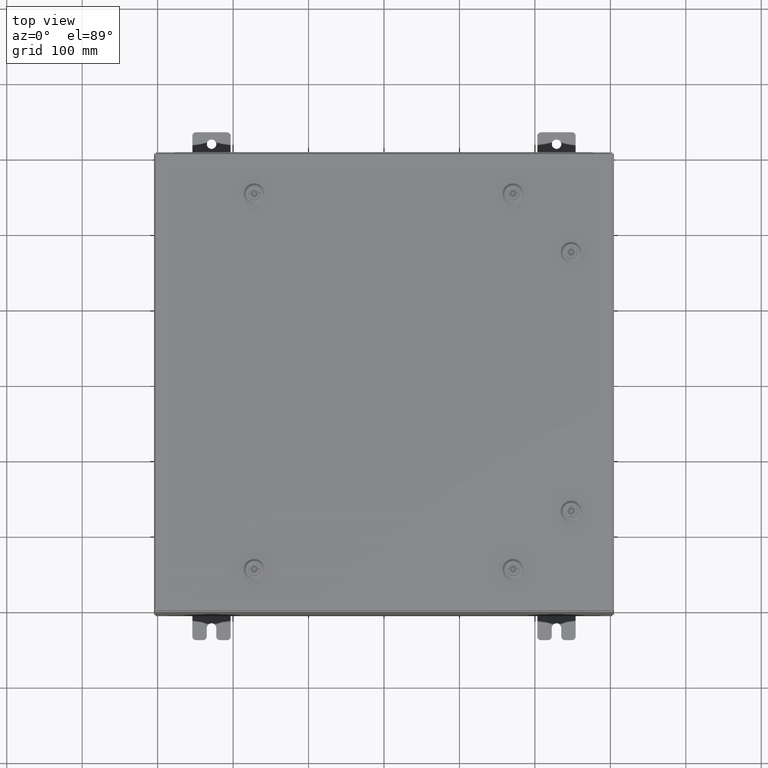
[diagram: clean part render]
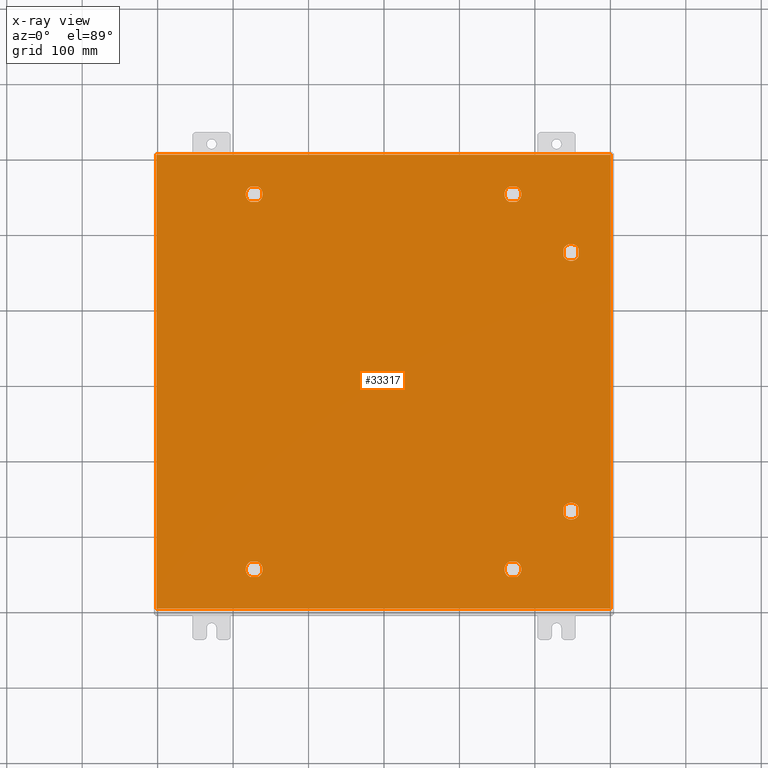
[diagram: x-ray — body ghosted, one internal face saturated and labeled with its STEP entity id]
A machine part, top view, then the same camera in x-ray: the body is ghosted and one INTERNAL B-rep face — a face not visible from any outside direction — is saturated and labeled: STEP entity #33317.
In plain terms, the highlighted planar face has unit normal (0, 0, -1).
Its self-contained STEP definition (entity closure, byte-faithful):
#129 = CARTESIAN_POINT ( 'NONE',  ( -6.949452375267869200, 9.392799999999995800, -0.07470000000000003000 ) ) ;
#429 = VERTEX_POINT ( 'NONE', #59212 ) ;
#556 = CARTESIAN_POINT ( 'NONE',  ( 9.392800000000015400, 6.949452375267905600, -0.07470000000000003000 ) ) ;
#566 = DIRECTION ( 'NONE',  ( -8.218046007208762600E-015, -1.000000000000000000, 0.0000000000000000000 ) ) ;
#917 = VERTEX_POINT ( 'NONE', #43600 ) ;
#966 = CARTESIAN_POINT ( 'NONE',  ( 11.84980000000000200, 11.84980000000000000, -0.07469999999999910000 ) ) ;
#1202 = CARTESIAN_POINT ( 'NONE',  ( 6.949452375267869200, 9.392799999999995800, -0.07470000000000003000 ) ) ;
#1484 = EDGE_LOOP ( 'NONE', ( #42709, #33852, #57841, #58592, #51584 ) ) ;
#1722 = EDGE_CURVE ( 'NONE', #9623, #53597, #14063, .T. ) ;
#1852 = EDGE_CURVE ( 'NONE', #37209, #7654, #47912, .T. ) ;
#2556 = CARTESIAN_POINT ( 'NONE',  ( 6.749999999999984900, 9.787799999999993600, -0.07470000000000003000 ) ) ;
#2877 = VERTEX_POINT ( 'NONE', #1202 ) ;
#3195 = DIRECTION ( 'NONE',  ( -0.0000000000000000000, -0.0000000000000000000, 1.000000000000000000 ) ) ;
#3309 = CARTESIAN_POINT ( 'NONE',  ( -11.84979999999999500, -11.84980000000000000, -0.07470000000000019700 ) ) ;
#3391 = FACE_BOUND ( 'NONE', #22335, .T. ) ;
#3574 = DIRECTION ( 'NONE',  ( -0.0000000000000000000, -0.0000000000000000000, 1.000000000000000000 ) ) ;
#3651 = AXIS2_PLACEMENT_3D ( 'NONE', #14340, #48641, #19338 ) ;
#3885 = DIRECTION ( 'NONE',  ( -1.000000000000000000, 0.0000000000000000000, 0.0000000000000000000 ) ) ;
#3982 = CARTESIAN_POINT ( 'NONE',  ( 6.550547624732093500, 10.18279999999998400, -0.07470000000000000300 ) ) ;
#4304 = ORIENTED_EDGE ( 'NONE', *, *, #8345, .T. ) ;
#4952 = LINE ( 'NONE', #27896, #55593 ) ;
#5223 = VERTEX_POINT ( 'NONE', #27980 ) ;
#5263 = VECTOR ( 'NONE', #566, 39.37007874015748100 ) ;
#5344 = ORIENTED_EDGE ( 'NONE', *, *, #11392, .F. ) ;
#5929 = LINE ( 'NONE', #34122, #30459 ) ;
#5938 = ORIENTED_EDGE ( 'NONE', *, *, #9923, .T. ) ;
#6001 = ORIENTED_EDGE ( 'NONE', *, *, #52769, .F. ) ;
#6122 = DIRECTION ( 'NONE',  ( -1.000000000000000000, 0.0000000000000000000, 0.0000000000000000000 ) ) ;
#6498 = CARTESIAN_POINT ( 'NONE',  ( 6.749999999999984900, -9.787799999999993600, -0.07470000000000003000 ) ) ;
#6878 = CARTESIAN_POINT ( 'NONE',  ( 6.550547624732093500, 10.18279999999998400, -0.07470000000000003000 ) ) ;
#7200 = AXIS2_PLACEMENT_3D ( 'NONE', #53946, #24613, #58924 ) ;
#7528 = CIRCLE ( 'NONE', #55670, 0.4424999999999972800 ) ;
#7654 = VERTEX_POINT ( 'NONE', #51329 ) ;
#8131 = CARTESIAN_POINT ( 'NONE',  ( 6.550547624732093500, -10.18279999999998400, -0.07470000000000003000 ) ) ;
#8258 = CIRCLE ( 'NONE', #7200, 0.4424999999999972800 ) ;
#8345 = EDGE_CURVE ( 'NONE', #37312, #44647, #18301, .T. ) ;
#8907 = VERTEX_POINT ( 'NONE', #52364 ) ;
#9569 = EDGE_LOOP ( 'NONE', ( #15215, #37728, #32084, #13914, #53760 ) ) ;
#9623 = VERTEX_POINT ( 'NONE', #58416 ) ;
#9839 = CARTESIAN_POINT ( 'NONE',  ( -6.749999999999984900, -9.787799999999995400, -0.07470000000000003000 ) ) ;
#9923 = EDGE_CURVE ( 'NONE', #44647, #12486, #27544, .T. ) ;
#10074 = CARTESIAN_POINT ( 'NONE',  ( 9.787800000000007800, 6.750000000000015100, -0.07470000000000003000 ) ) ;
#10152 = AXIS2_PLACEMENT_3D ( 'NONE', #57718, #18692, #52938 ) ;
#10258 = EDGE_CURVE ( 'NONE', #25871, #37312, #55920, .T. ) ;
#10580 = VECTOR ( 'NONE', #41131, 39.37007874015748100 ) ;
#10866 = AXIS2_PLACEMENT_3D ( 'NONE', #6498, #40778, #11348 ) ;
#11039 = VECTOR ( 'NONE', #31660, 39.37007874015748100 ) ;
#11348 = DIRECTION ( 'NONE',  ( -1.000000000000000000, 4.938934225833714700E-015, 0.0000000000000000000 ) ) ;
#11392 = EDGE_CURVE ( 'NONE', #61392, #8907, #32782, .T. ) ;
#11558 = DIRECTION ( 'NONE',  ( -0.0000000000000000000, -0.0000000000000000000, 1.000000000000000000 ) ) ;
#11628 = CARTESIAN_POINT ( 'NONE',  ( -6.550547624732099700, -9.392799999999999400, -0.07470000000000003000 ) ) ;
#11678 = VERTEX_POINT ( 'NONE', #50126 ) ;
#11840 = AXIS2_PLACEMENT_3D ( 'NONE', #33975, #34176, #33898 ) ;
#12486 = VERTEX_POINT ( 'NONE', #36426 ) ;
#12587 = DIRECTION ( 'NONE',  ( -5.478697338139235800E-015, 1.000000000000000000, 0.0000000000000000000 ) ) ;
#12691 = DIRECTION ( 'NONE',  ( -1.000000000000000000, 2.739348669069610000E-015, 0.0000000000000000000 ) ) ;
#12811 = AXIS2_PLACEMENT_3D ( 'NONE', #9839, #44174, #14807 ) ;
#13059 = EDGE_CURVE ( 'NONE', #53436, #50963, #21218, .T. ) ;
#13374 = VERTEX_POINT ( 'NONE', #37272 ) ;
#13683 = PLANE ( 'NONE',  #10152 ) ;
#13795 = EDGE_CURVE ( 'NONE', #2877, #48908, #40302, .T. ) ;
#13914 = ORIENTED_EDGE ( 'NONE', *, *, #28445, .T. ) ;
#14063 = CIRCLE ( 'NONE', #40278, 0.4424999999999972800 ) ;
#14340 = CARTESIAN_POINT ( 'NONE',  ( -6.749999999999984900, 9.787799999999991800, -0.07470000000000003000 ) ) ;
#14807 = DIRECTION ( 'NONE',  ( -1.000000000000000000, 0.0000000000000000000, 0.0000000000000000000 ) ) ;
#15098 = EDGE_LOOP ( 'NONE', ( #29222, #22136, #6001, #5344 ) ) ;
#15120 = CARTESIAN_POINT ( 'NONE',  ( -6.550547624732093500, 10.18279999999998300, -0.07470000000000003000 ) ) ;
#15154 = CARTESIAN_POINT ( 'NONE',  ( 9.787800000000007800, -6.750000000000015100, -0.07470000000000003000 ) ) ;
#15215 = ORIENTED_EDGE ( 'NONE', *, *, #36296, .T. ) ;
#16303 = AXIS2_PLACEMENT_3D ( 'NONE', #47071, #59631, #6122 ) ;
#16427 = FACE_BOUND ( 'NONE', #1484, .T. ) ;
#16839 = DIRECTION ( 'NONE',  ( -0.0000000000000000000, -0.0000000000000000000, 1.000000000000000000 ) ) ;
#16912 = CARTESIAN_POINT ( 'NONE',  ( 6.749999999999984900, -9.787799999999993600, -0.07470000000000003000 ) ) ;
#17725 = VERTEX_POINT ( 'NONE', #45855 ) ;
#18201 = ORIENTED_EDGE ( 'NONE', *, *, #1722, .T. ) ;
#18301 = LINE ( 'NONE', #556, #5263 ) ;
#18315 = DIRECTION ( 'NONE',  ( 1.000000000000000000, -2.739348669069610000E-015, 0.0000000000000000000 ) ) ;
#18545 = VERTEX_POINT ( 'NONE', #21963 ) ;
#18692 = DIRECTION ( 'NONE',  ( 0.0000000000000000000, 0.0000000000000000000, -1.000000000000000000 ) ) ;
#19288 = CIRCLE ( 'NONE', #30484, 0.4424999999999972800 ) ;
#19338 = DIRECTION ( 'NONE',  ( -1.000000000000000000, 2.469467112916863300E-015, 0.0000000000000000000 ) ) ;
#20135 = DIRECTION ( 'NONE',  ( -1.000000000000000000, -2.469467112916857400E-015, 0.0000000000000000000 ) ) ;
#20216 = EDGE_CURVE ( 'NONE', #18545, #29270, #37036, .T. ) ;
#20420 = EDGE_LOOP ( 'NONE', ( #5938, #38671, #44804, #4304 ) ) ;
#21109 = DIRECTION ( 'NONE',  ( -0.0000000000000000000, -0.0000000000000000000, 1.000000000000000000 ) ) ;
#21218 = LINE ( 'NONE', #3309, #32666 ) ;
#21274 = EDGE_CURVE ( 'NONE', #7654, #2877, #46289, .T. ) ;
#21462 = DIRECTION ( 'NONE',  ( -0.0000000000000000000, -0.0000000000000000000, 1.000000000000000000 ) ) ;
#21553 = LINE ( 'NONE', #56617, #36043 ) ;
#21963 = CARTESIAN_POINT ( 'NONE',  ( -6.307499999999987700, -9.787799999999995400, -0.07470000000000003000 ) ) ;
#22136 = ORIENTED_EDGE ( 'NONE', *, *, #13059, .F. ) ;
#22335 = EDGE_LOOP ( 'NONE', ( #38554, #61628, #23194, #49829, #36902 ) ) ;
#22439 = CARTESIAN_POINT ( 'NONE',  ( 7.192499999999983000, -9.787799999999993600, -0.07470000000000003000 ) ) ;
#23056 = VECTOR ( 'NONE', #34920, 39.37007874015748100 ) ;
#23194 = ORIENTED_EDGE ( 'NONE', *, *, #27074, .T. ) ;
#23858 = AXIS2_PLACEMENT_3D ( 'NONE', #50439, #21109, #55415 ) ;
#23934 = CARTESIAN_POINT ( 'NONE',  ( 9.392800000000011800, 6.550547624732132600, -0.07470000000000003000 ) ) ;
#24613 = DIRECTION ( 'NONE',  ( -0.0000000000000000000, -0.0000000000000000000, 1.000000000000000000 ) ) ;
#24665 = EDGE_CURVE ( 'NONE', #917, #18545, #19288, .T. ) ;
#24952 = EDGE_CURVE ( 'NONE', #48908, #13374, #39185, .T. ) ;
#25871 = VERTEX_POINT ( 'NONE', #35708 ) ;
#25981 = LINE ( 'NONE', #34682, #39007 ) ;
#26331 = ORIENTED_EDGE ( 'NONE', *, *, #28941, .T. ) ;
#26337 = EDGE_CURVE ( 'NONE', #38613, #5223, #58303, .T. ) ;
#26370 = DIRECTION ( 'NONE',  ( -0.0000000000000000000, -0.0000000000000000000, 1.000000000000000000 ) ) ;
#26443 = CARTESIAN_POINT ( 'NONE',  ( -11.84980000000000000, 11.84980000000000000, -0.07470000000000129300 ) ) ;
#26642 = ORIENTED_EDGE ( 'NONE', *, *, #27460, .T. ) ;
#26892 = VERTEX_POINT ( 'NONE', #44000 ) ;
#27074 = EDGE_CURVE ( 'NONE', #13374, #37209, #38252, .T. ) ;
#27460 = EDGE_CURVE ( 'NONE', #429, #45227, #25981, .T. ) ;
#27544 = CIRCLE ( 'NONE', #43815, 0.4424999999999972800 ) ;
#27613 = VERTEX_POINT ( 'NONE', #35624 ) ;
#27759 = CARTESIAN_POINT ( 'NONE',  ( -6.550547624732099700, 9.392799999999995800, -0.07470000000000000300 ) ) ;
#27896 = CARTESIAN_POINT ( 'NONE',  ( -6.550547624732093500, -10.18279999999998800, -0.07470000000000003000 ) ) ;
#27950 = CARTESIAN_POINT ( 'NONE',  ( 6.550547624732099700, 9.392799999999997600, -0.07470000000000003000 ) ) ;
#27980 = CARTESIAN_POINT ( 'NONE',  ( -6.949452375267865600, 10.18279999999999000, -0.07470000000000003000 ) ) ;
#28071 = ORIENTED_EDGE ( 'NONE', *, *, #36766, .T. ) ;
#28445 = EDGE_CURVE ( 'NONE', #36664, #38613, #7528, .T. ) ;
#28617 = LINE ( 'NONE', #51966, #51613 ) ;
#28941 = EDGE_CURVE ( 'NONE', #45227, #17725, #8258, .T. ) ;
#29103 = DIRECTION ( 'NONE',  ( -0.0000000000000000000, -0.0000000000000000000, 1.000000000000000000 ) ) ;
#29222 = ORIENTED_EDGE ( 'NONE', *, *, #49115, .F. ) ;
#29270 = VERTEX_POINT ( 'NONE', #11628 ) ;
#29479 = FACE_BOUND ( 'NONE', #20420, .T. ) ;
#29485 = EDGE_CURVE ( 'NONE', #17725, #26892, #5929, .T. ) ;
#30042 = CARTESIAN_POINT ( 'NONE',  ( 11.84980000000000000, -11.84980000000000000, -0.07470000000000019700 ) ) ;
#30423 = DIRECTION ( 'NONE',  ( -1.000000000000000000, 0.0000000000000000000, 0.0000000000000000000 ) ) ;
#30430 = CARTESIAN_POINT ( 'NONE',  ( 6.949452375267865600, -10.18279999999999100, -0.07470000000000003000 ) ) ;
#30459 = VECTOR ( 'NONE', #58633, 39.37007874015748100 ) ;
#30484 = AXIS2_PLACEMENT_3D ( 'NONE', #32533, #3195, #37442 ) ;
#31386 = EDGE_CURVE ( 'NONE', #39468, #45991, #54154, .T. ) ;
#31660 = DIRECTION ( 'NONE',  ( 1.000000000000000000, 2.739348669069610000E-015, 0.0000000000000000000 ) ) ;
#32084 = ORIENTED_EDGE ( 'NONE', *, *, #53155, .T. ) ;
#32533 = CARTESIAN_POINT ( 'NONE',  ( -6.749999999999984900, -9.787799999999995400, -0.07470000000000003000 ) ) ;
#32666 = VECTOR ( 'NONE', #34467, 39.37007874015748100 ) ;
#32782 = LINE ( 'NONE', #966, #44310 ) ;
#33240 = EDGE_CURVE ( 'NONE', #27613, #917, #4952, .T. ) ;
#33246 = VECTOR ( 'NONE', #18315, 39.37007874015748100 ) ;
#33317 = ADVANCED_FACE ( 'NONE', ( #44037, #29479, #42496, #16427, #3391, #54024, #40967 ), #13683, .T. ) ;
#33852 = ORIENTED_EDGE ( 'NONE', *, *, #33240, .T. ) ;
#33898 = DIRECTION ( 'NONE',  ( -1.000000000000000000, 2.469467112916863300E-015, 0.0000000000000000000 ) ) ;
#33975 = CARTESIAN_POINT ( 'NONE',  ( 6.749999999999984900, 9.787799999999993600, -0.07470000000000003000 ) ) ;
#34122 = CARTESIAN_POINT ( 'NONE',  ( 10.18280000000000600, -6.949452375267901200, -0.07470000000000003000 ) ) ;
#34176 = DIRECTION ( 'NONE',  ( -0.0000000000000000000, -0.0000000000000000000, 1.000000000000000000 ) ) ;
#34382 = EDGE_LOOP ( 'NONE', ( #54129, #63475, #38035, #18201, #52674 ) ) ;
#34467 = DIRECTION ( 'NONE',  ( 1.000000000000000000, -0.0000000000000000000, -0.0000000000000000000 ) ) ;
#34575 = VECTOR ( 'NONE', #38042, 39.37007874015748100 ) ;
#34682 = CARTESIAN_POINT ( 'NONE',  ( 9.392800000000017100, -6.949452375267905600, -0.07470000000000003000 ) ) ;
#34814 = EDGE_CURVE ( 'NONE', #12486, #25871, #21553, .T. ) ;
#34920 = DIRECTION ( 'NONE',  ( 0.0000000000000000000, 1.000000000000000000, 0.0000000000000000000 ) ) ;
#35624 = CARTESIAN_POINT ( 'NONE',  ( -6.949452375267865600, -10.18279999999999100, -0.07470000000000003000 ) ) ;
#35708 = CARTESIAN_POINT ( 'NONE',  ( 10.18280000000000200, 6.949452375267901200, -0.07470000000000000300 ) ) ;
#35777 = AXIS2_PLACEMENT_3D ( 'NONE', #50796, #21462, #55752 ) ;
#35913 = CIRCLE ( 'NONE', #58814, 0.4424999999999983400 ) ;
#36043 = VECTOR ( 'NONE', #12587, 39.37007874015748100 ) ;
#36296 = EDGE_CURVE ( 'NONE', #5223, #58763, #51359, .T. ) ;
#36319 = CARTESIAN_POINT ( 'NONE',  ( 6.550547624732099700, -9.392799999999997600, -0.07470000000000003000 ) ) ;
#36332 = DIRECTION ( 'NONE',  ( -0.0000000000000000000, -0.0000000000000000000, 1.000000000000000000 ) ) ;
#36426 = CARTESIAN_POINT ( 'NONE',  ( 10.18280000000000600, 6.550547624732132600, -0.07470000000000003000 ) ) ;
#36664 = VERTEX_POINT ( 'NONE', #50366 ) ;
#36766 = EDGE_CURVE ( 'NONE', #26892, #429, #35913, .T. ) ;
#36888 = CARTESIAN_POINT ( 'NONE',  ( -6.949452375267869200, -9.392799999999997600, -0.07470000000000003000 ) ) ;
#36902 = ORIENTED_EDGE ( 'NONE', *, *, #21274, .T. ) ;
#37036 = CIRCLE ( 'NONE', #57771, 0.4424999999999972800 ) ;
#37209 = VERTEX_POINT ( 'NONE', #3982 ) ;
#37272 = CARTESIAN_POINT ( 'NONE',  ( 6.949452375267865600, 10.18279999999999000, -0.07470000000000003000 ) ) ;
#37312 = VERTEX_POINT ( 'NONE', #48725 ) ;
#37442 = DIRECTION ( 'NONE',  ( -1.000000000000000000, 0.0000000000000000000, 0.0000000000000000000 ) ) ;
#37728 = ORIENTED_EDGE ( 'NONE', *, *, #57347, .T. ) ;
#37832 = CIRCLE ( 'NONE', #12811, 0.4424999999999972800 ) ;
#37961 = CARTESIAN_POINT ( 'NONE',  ( 7.192499999999982100, 9.787799999999993600, -0.07470000000000003000 ) ) ;
#38035 = ORIENTED_EDGE ( 'NONE', *, *, #42999, .T. ) ;
#38042 = DIRECTION ( 'NONE',  ( 1.000000000000000000, -1.643609201441752500E-014, 0.0000000000000000000 ) ) ;
#38252 = LINE ( 'NONE', #6878, #10580 ) ;
#38554 = ORIENTED_EDGE ( 'NONE', *, *, #13795, .T. ) ;
#38613 = VERTEX_POINT ( 'NONE', #49589 ) ;
#38671 = ORIENTED_EDGE ( 'NONE', *, *, #34814, .T. ) ;
#39007 = VECTOR ( 'NONE', #39857, 39.37007874015748100 ) ;
#39185 = CIRCLE ( 'NONE', #60097, 0.4424999999999972800 ) ;
#39468 = VERTEX_POINT ( 'NONE', #30430 ) ;
#39810 = VERTEX_POINT ( 'NONE', #27759 ) ;
#39857 = DIRECTION ( 'NONE',  ( 1.095739467627835200E-014, -1.000000000000000000, 0.0000000000000000000 ) ) ;
#40278 = AXIS2_PLACEMENT_3D ( 'NONE', #16912, #36332, #47063 ) ;
#40302 = CIRCLE ( 'NONE', #11840, 0.4424999999999972800 ) ;
#40778 = DIRECTION ( 'NONE',  ( -0.0000000000000000000, -0.0000000000000000000, 1.000000000000000000 ) ) ;
#40967 = FACE_OUTER_BOUND ( 'NONE', #15098, .T. ) ;
#40971 = CARTESIAN_POINT ( 'NONE',  ( -6.749999999999984900, -9.787799999999995400, -0.07470000000000003000 ) ) ;
#41015 = LINE ( 'NONE', #36319, #52521 ) ;
#41131 = DIRECTION ( 'NONE',  ( -1.000000000000000000, -1.095739467627835200E-014, 0.0000000000000000000 ) ) ;
#42496 = FACE_BOUND ( 'NONE', #34382, .T. ) ;
#42538 = LINE ( 'NONE', #51161, #11039 ) ;
#42709 = ORIENTED_EDGE ( 'NONE', *, *, #58761, .T. ) ;
#42999 = EDGE_CURVE ( 'NONE', #11678, #9623, #41015, .T. ) ;
#43563 = AXIS2_PLACEMENT_3D ( 'NONE', #2556, #3574, #3885 ) ;
#43600 = CARTESIAN_POINT ( 'NONE',  ( -6.550547624732093500, -10.18279999999998800, -0.07470000000000000300 ) ) ;
#43815 = AXIS2_PLACEMENT_3D ( 'NONE', #10074, #16839, #30423 ) ;
#44000 = CARTESIAN_POINT ( 'NONE',  ( 10.18280000000000700, -6.550547624732132600, -0.07470000000000003000 ) ) ;
#44037 = FACE_BOUND ( 'NONE', #62913, .T. ) ;
#44174 = DIRECTION ( 'NONE',  ( -0.0000000000000000000, -0.0000000000000000000, 1.000000000000000000 ) ) ;
#44310 = VECTOR ( 'NONE', #53736, 39.37007874015748100 ) ;
#44647 = VERTEX_POINT ( 'NONE', #23934 ) ;
#44768 = CARTESIAN_POINT ( 'NONE',  ( 9.392800000000017100, -6.949452375267905600, -0.07470000000000000300 ) ) ;
#44804 = ORIENTED_EDGE ( 'NONE', *, *, #10258, .T. ) ;
#45227 = VERTEX_POINT ( 'NONE', #44768 ) ;
#45548 = EDGE_CURVE ( 'NONE', #29270, #58260, #28617, .T. ) ;
#45855 = CARTESIAN_POINT ( 'NONE',  ( 10.18280000000000600, -6.949452375267901200, -0.07470000000000003000 ) ) ;
#45903 = DIRECTION ( 'NONE',  ( -1.000000000000000000, 0.0000000000000000000, 0.0000000000000000000 ) ) ;
#45991 = VERTEX_POINT ( 'NONE', #22439 ) ;
#46289 = LINE ( 'NONE', #27950, #33246 ) ;
#47063 = DIRECTION ( 'NONE',  ( -1.000000000000000000, 2.469467112916863300E-015, 0.0000000000000000000 ) ) ;
#47071 = CARTESIAN_POINT ( 'NONE',  ( 9.787800000000007800, 6.750000000000015100, -0.07470000000000003000 ) ) ;
#47139 = EDGE_CURVE ( 'NONE', #45991, #11678, #59267, .T. ) ;
#47912 = CIRCLE ( 'NONE', #43563, 0.4424999999999972800 ) ;
#47988 = EDGE_CURVE ( 'NONE', #53597, #39468, #53785, .T. ) ;
#48167 = LINE ( 'NONE', #26443, #49734 ) ;
#48317 = CARTESIAN_POINT ( 'NONE',  ( 11.84980000000000000, 11.84980000000000000, -0.07470000000000000300 ) ) ;
#48641 = DIRECTION ( 'NONE',  ( -0.0000000000000000000, -0.0000000000000000000, 1.000000000000000000 ) ) ;
#48725 = CARTESIAN_POINT ( 'NONE',  ( 9.392800000000015400, 6.949452375267905600, -0.07470000000000003000 ) ) ;
#48908 = VERTEX_POINT ( 'NONE', #37961 ) ;
#49115 = EDGE_CURVE ( 'NONE', #50963, #61392, #60674, .T. ) ;
#49442 = DIRECTION ( 'NONE',  ( -0.0000000000000000000, -0.0000000000000000000, 1.000000000000000000 ) ) ;
#49589 = CARTESIAN_POINT ( 'NONE',  ( -6.550547624732093500, 10.18279999999998300, -0.07470000000000003000 ) ) ;
#49734 = VECTOR ( 'NONE', #60783, 39.37007874015748100 ) ;
#49829 = ORIENTED_EDGE ( 'NONE', *, *, #1852, .T. ) ;
#50126 = CARTESIAN_POINT ( 'NONE',  ( 6.949452375267869200, -9.392799999999997600, -0.07470000000000003000 ) ) ;
#50366 = CARTESIAN_POINT ( 'NONE',  ( -6.307499999999987700, 9.787799999999991800, -0.07470000000000003000 ) ) ;
#50439 = CARTESIAN_POINT ( 'NONE',  ( -6.749999999999984900, 9.787799999999991800, -0.07470000000000003000 ) ) ;
#50796 = CARTESIAN_POINT ( 'NONE',  ( 6.749999999999984900, -9.787799999999993600, -0.07470000000000003000 ) ) ;
#50963 = VERTEX_POINT ( 'NONE', #55519 ) ;
#51161 = CARTESIAN_POINT ( 'NONE',  ( -6.550547624732099700, 9.392799999999995800, -0.07470000000000003000 ) ) ;
#51329 = CARTESIAN_POINT ( 'NONE',  ( 6.550547624732099700, 9.392799999999997600, -0.07470000000000003000 ) ) ;
#51359 = CIRCLE ( 'NONE', #23858, 0.4424999999999983400 ) ;
#51584 = ORIENTED_EDGE ( 'NONE', *, *, #45548, .T. ) ;
#51613 = VECTOR ( 'NONE', #12691, 39.37007874015748100 ) ;
#51649 = CARTESIAN_POINT ( 'NONE',  ( -11.84979999999999500, -11.84980000000000000, -0.07470000000000000300 ) ) ;
#51966 = CARTESIAN_POINT ( 'NONE',  ( -6.550547624732099700, -9.392799999999999400, -0.07470000000000003000 ) ) ;
#52364 = CARTESIAN_POINT ( 'NONE',  ( -11.84979999999999800, 11.84980000000000000, -0.07470000000000000300 ) ) ;
#52521 = VECTOR ( 'NONE', #60879, 39.37007874015748100 ) ;
#52674 = ORIENTED_EDGE ( 'NONE', *, *, #47988, .T. ) ;
#52769 = EDGE_CURVE ( 'NONE', #8907, #53436, #48167, .T. ) ;
#52938 = DIRECTION ( 'NONE',  ( -1.000000000000000000, 0.0000000000000000000, -0.0000000000000000000 ) ) ;
#53155 = EDGE_CURVE ( 'NONE', #39810, #36664, #63599, .T. ) ;
#53436 = VERTEX_POINT ( 'NONE', #51649 ) ;
#53597 = VERTEX_POINT ( 'NONE', #8131 ) ;
#53736 = DIRECTION ( 'NONE',  ( -1.000000000000000000, -0.0000000000000000000, -0.0000000000000000000 ) ) ;
#53760 = ORIENTED_EDGE ( 'NONE', *, *, #26337, .T. ) ;
#53785 = LINE ( 'NONE', #62564, #34575 ) ;
#53946 = CARTESIAN_POINT ( 'NONE',  ( 9.787800000000007800, -6.750000000000015100, -0.07470000000000003000 ) ) ;
#54024 = FACE_BOUND ( 'NONE', #9569, .T. ) ;
#54129 = ORIENTED_EDGE ( 'NONE', *, *, #31386, .T. ) ;
#54154 = CIRCLE ( 'NONE', #10866, 0.4424999999999983400 ) ;
#55415 = DIRECTION ( 'NONE',  ( -1.000000000000000000, 2.469467112916857400E-015, 0.0000000000000000000 ) ) ;
#55519 = CARTESIAN_POINT ( 'NONE',  ( 11.84980000000000000, -11.84980000000000000, -0.07470000000000000300 ) ) ;
#55593 = VECTOR ( 'NONE', #62454, 39.37007874015748100 ) ;
#55670 = AXIS2_PLACEMENT_3D ( 'NONE', #55739, #26370, #60699 ) ;
#55739 = CARTESIAN_POINT ( 'NONE',  ( -6.749999999999984900, 9.787799999999991800, -0.07470000000000003000 ) ) ;
#55752 = DIRECTION ( 'NONE',  ( -1.000000000000000000, 2.469467112916857400E-015, 0.0000000000000000000 ) ) ;
#55920 = CIRCLE ( 'NONE', #16303, 0.4424999999999972800 ) ;
#56617 = CARTESIAN_POINT ( 'NONE',  ( 10.18280000000000200, 6.949452375267901200, -0.07470000000000003000 ) ) ;
#56764 = VECTOR ( 'NONE', #59349, 39.37007874015748100 ) ;
#57347 = EDGE_CURVE ( 'NONE', #58763, #39810, #42538, .T. ) ;
#57718 = CARTESIAN_POINT ( 'NONE',  ( 0.0000000000000000000, 0.0000000000000000000, -0.07470000000000000300 ) ) ;
#57771 = AXIS2_PLACEMENT_3D ( 'NONE', #40971, #11558, #45903 ) ;
#57841 = ORIENTED_EDGE ( 'NONE', *, *, #24665, .T. ) ;
#58260 = VERTEX_POINT ( 'NONE', #36888 ) ;
#58303 = LINE ( 'NONE', #15120, #56764 ) ;
#58416 = CARTESIAN_POINT ( 'NONE',  ( 6.550547624732099700, -9.392799999999997600, -0.07470000000000000300 ) ) ;
#58511 = CARTESIAN_POINT ( 'NONE',  ( 6.749999999999984900, 9.787799999999993600, -0.07470000000000003000 ) ) ;
#58592 = ORIENTED_EDGE ( 'NONE', *, *, #20216, .T. ) ;
#58633 = DIRECTION ( 'NONE',  ( 5.478697338139235800E-015, 1.000000000000000000, 0.0000000000000000000 ) ) ;
#58761 = EDGE_CURVE ( 'NONE', #58260, #27613, #37832, .T. ) ;
#58763 = VERTEX_POINT ( 'NONE', #129 ) ;
#58814 = AXIS2_PLACEMENT_3D ( 'NONE', #15154, #49442, #20135 ) ;
#58924 = DIRECTION ( 'NONE',  ( -1.000000000000000000, 0.0000000000000000000, 0.0000000000000000000 ) ) ;
#59212 = CARTESIAN_POINT ( 'NONE',  ( 9.392800000000011800, -6.550547624732132600, -0.07470000000000003000 ) ) ;
#59267 = CIRCLE ( 'NONE', #35777, 0.4424999999999983400 ) ;
#59349 = DIRECTION ( 'NONE',  ( -1.000000000000000000, 1.643609201441752500E-014, 0.0000000000000000000 ) ) ;
#59631 = DIRECTION ( 'NONE',  ( -0.0000000000000000000, -0.0000000000000000000, 1.000000000000000000 ) ) ;
#60097 = AXIS2_PLACEMENT_3D ( 'NONE', #58511, #29103, #63465 ) ;
#60674 = LINE ( 'NONE', #30042, #23056 ) ;
#60699 = DIRECTION ( 'NONE',  ( -1.000000000000000000, 0.0000000000000000000, 0.0000000000000000000 ) ) ;
#60783 = DIRECTION ( 'NONE',  ( 0.0000000000000000000, -1.000000000000000000, 0.0000000000000000000 ) ) ;
#60879 = DIRECTION ( 'NONE',  ( -1.000000000000000000, -2.739348669069610000E-015, 0.0000000000000000000 ) ) ;
#61153 = ORIENTED_EDGE ( 'NONE', *, *, #29485, .T. ) ;
#61392 = VERTEX_POINT ( 'NONE', #48317 ) ;
#61628 = ORIENTED_EDGE ( 'NONE', *, *, #24952, .T. ) ;
#62454 = DIRECTION ( 'NONE',  ( 1.000000000000000000, 1.095739467627835200E-014, 0.0000000000000000000 ) ) ;
#62564 = CARTESIAN_POINT ( 'NONE',  ( 6.550547624732093500, -10.18279999999998400, -0.07470000000000003000 ) ) ;
#62913 = EDGE_LOOP ( 'NONE', ( #28071, #26642, #26331, #61153 ) ) ;
#63465 = DIRECTION ( 'NONE',  ( -1.000000000000000000, -7.408401338750590300E-015, 0.0000000000000000000 ) ) ;
#63475 = ORIENTED_EDGE ( 'NONE', *, *, #47139, .T. ) ;
#63599 = CIRCLE ( 'NONE', #3651, 0.4424999999999972800 ) ;